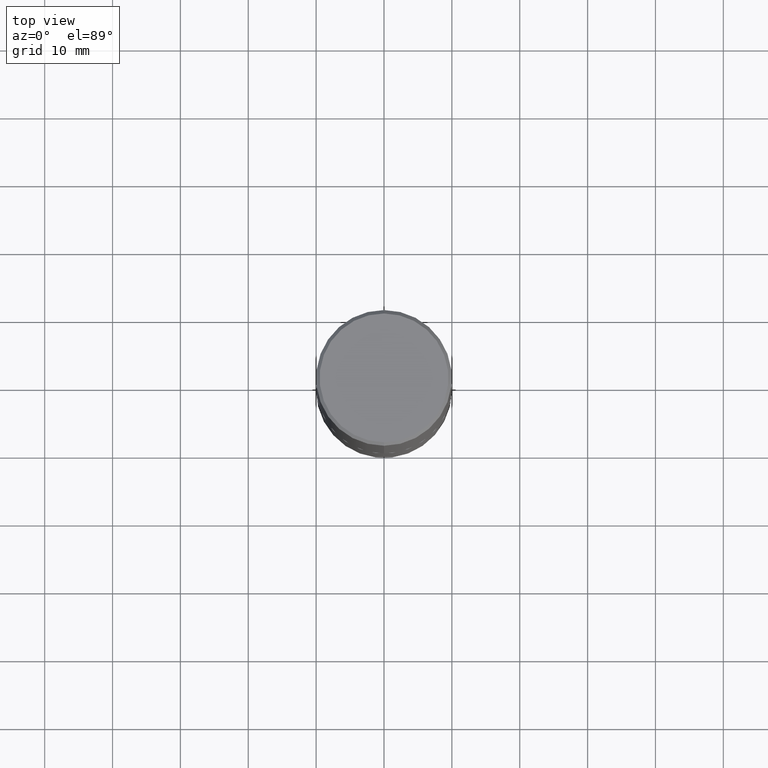
[diagram: clean part render]
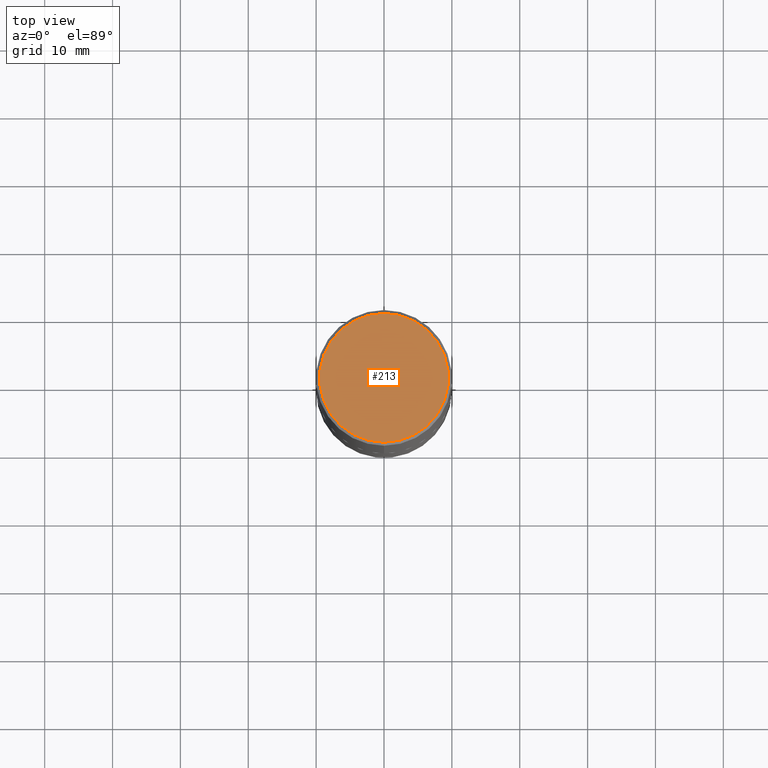
[diagram: same view with one face highlighted and labeled with its STEP entity id]
A machine part, top view. The second image highlights one B-rep face of the part: STEP entity #213.
In plain terms, the highlighted planar face has unit normal (0, -0, -1).
Its self-contained STEP definition (entity closure, byte-faithful):
#26 = CARTESIAN_POINT ( 'NONE',  ( -5.119379194384959481E-45, 7.311571668294261102E-31, 2.093765260754239936E-16 ) ) ;
#28 = PLANE ( 'NONE',  #275 ) ;
#33 = DIRECTION ( 'NONE',  ( 6.982962677686265922E-15, 1.000000000000000000, -3.492068478421695064E-15 ) ) ;
#54 = CARTESIAN_POINT ( 'NONE',  ( 2.609533152651355831E-15, 0.3736999999999997546, -1.200297727348474625E-15 ) ) ;
#74 = EDGE_CURVE ( 'NONE', #99, #352, #305, .T. ) ;
#87 = AXIS2_PLACEMENT_3D ( 'NONE', #26, #296, #351 ) ;
#94 = FACE_OUTER_BOUND ( 'NONE', #219, .T. ) ;
#99 = VERTEX_POINT ( 'NONE', #152 ) ;
#111 = AXIS2_PLACEMENT_3D ( 'NONE', #285, #416, #140 ) ;
#140 = DIRECTION ( 'NONE',  ( -6.982962677686265922E-15, -1.000000000000000000, 3.492068478421695064E-15 ) ) ;
#152 = CARTESIAN_POINT ( 'NONE',  ( -2.632373081744935132E-15, -0.3736999999999997546, 1.514362516461610517E-15 ) ) ;
#170 = CARTESIAN_POINT ( 'NONE',  ( 2.679362779428219524E-15, 0.3736999999999997546, -1.095609464310762333E-15 ) ) ;
#174 = CIRCLE ( 'NONE', #87, 0.3736999999999997546 ) ;
#213 = ADVANCED_FACE ( 'NONE', ( #94 ), #28, .F. ) ;
#219 = EDGE_LOOP ( 'NONE', ( #409, #357 ) ) ;
#247 = EDGE_CURVE ( 'NONE', #352, #99, #174, .T. ) ;
#275 = AXIS2_PLACEMENT_3D ( 'NONE', #54, #356, #33 ) ;
#285 = CARTESIAN_POINT ( 'NONE',  ( -5.119379194384959481E-45, 7.311571668294261102E-31, 2.093765260754239936E-16 ) ) ;
#296 = DIRECTION ( 'NONE',  ( -2.445058808808776392E-29, 3.492068478421694670E-15, 1.000000000000000000 ) ) ;
#305 = CIRCLE ( 'NONE', #111, 0.3736999999999997546 ) ;
#351 = DIRECTION ( 'NONE',  ( -6.982962677686265922E-15, -1.000000000000000000, 3.492068478421695064E-15 ) ) ;
#352 = VERTEX_POINT ( 'NONE', #170 ) ;
#356 = DIRECTION ( 'NONE',  ( 2.445058808808775831E-29, -3.492068478421695064E-15, -1.000000000000000000 ) ) ;
#357 = ORIENTED_EDGE ( 'NONE', *, *, #74, .T. ) ;
#409 = ORIENTED_EDGE ( 'NONE', *, *, #247, .T. ) ;
#416 = DIRECTION ( 'NONE',  ( -2.445058808808776392E-29, 3.492068478421694670E-15, 1.000000000000000000 ) ) ;